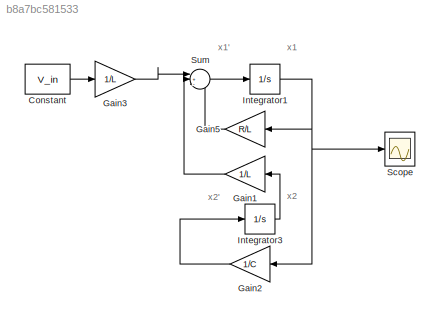
MODEL slx_b8a7bc581533
KIND model
CONFIG AbsTol = auto
CONFIG EnableMultiTasking = off
CONFIG FixedStep = auto
CONFIG InitFcn = R = 120;\nL = 0.0004;\nC = 0.0000001;\nV_in = 1;
CONFIG MaxStep = 0.0000001
CONFIG MinStep = auto
CONFIG RelTol = 1e-3
CONFIG SampleTimeConstraint = Unconstrained
CONFIG SolverName = VariableStepAuto
CONFIG StartTime = 0.0
CONFIG StopTime = 0.0001
BLOCK [Constant] Constant
  Value = V_in
BLOCK [Gain] Gain1
  Gain = 1/L
  NameLocation = top
BLOCK [Gain] Gain2
  Gain = 1/C
  NameLocation = top
BLOCK [Gain] Gain3
  Gain = 1/L
BLOCK [Gain] Gain5
  Gain = R/L
  NameLocation = top
BLOCK [Integrator] Integrator1
BLOCK [Integrator] Integrator3
BLOCK [Scope] Scope
  Floating = off
  NumInputPorts = 1
  ScopeSpecificationString = Simulink.scopes.TimeScopeBlockCfg('CurrentConfiguration', extmgr.ConfigurationSet(extmgr.Configuration('Core','General UI',true),extmgr.Configuration('Core','Source UI',true),extmgr.Configuration('Sources','WiredSimulink',true),extmgr.Configuration('Visuals','Time Domain',true,'SerializedDisplays',{struct('MinYLimReal','-0.00075','MaxYLimReal','0.00678','YLabelReal','','MinYLimMag','0.00000','MaxY...<+1494ch>
BLOCK [Sum] Sum
  Inputs = |+--
ANNOTATION (root): x1
ANNOTATION (root): x1'
ANNOTATION (root): x2
ANNOTATION (root): x2'
LINE Constant:1 -> Gain3:1
LINE Gain1:1 -> Sum:2
LINE Gain2:1 -> Integrator3:1
LINE Gain3:1 -> Sum:1
LINE Gain5:1 -> Sum:3
NET Integrator1:1 -> Gain2:1, Gain5:1, Scope:1
LINE Integrator3:1 -> Gain1:1
LINE Sum:1 -> Integrator1:1
note: NET lines group one-source signal fan-out (src -> all destinations, sorted); 1:1 wires keep LINE
